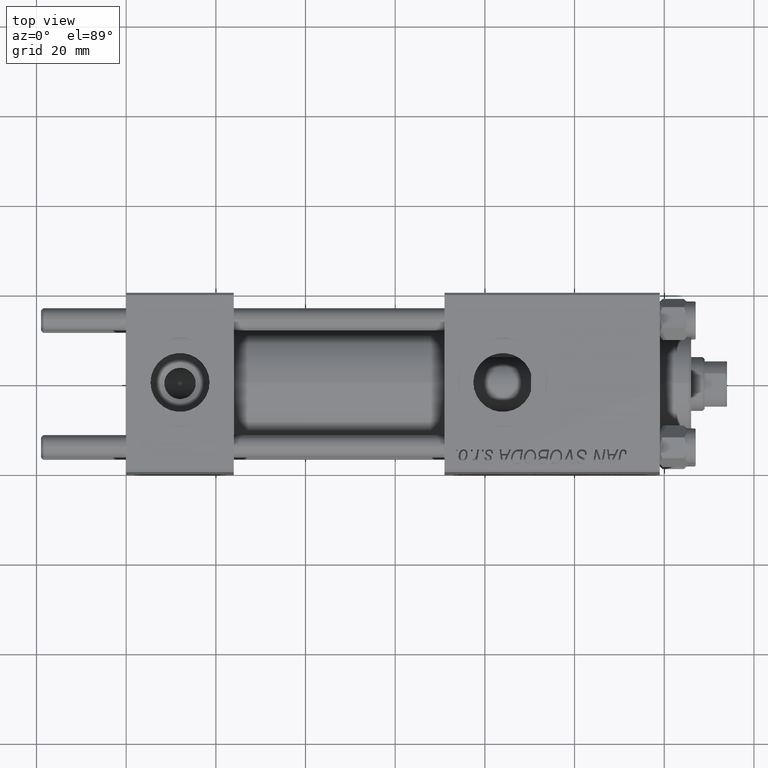
[diagram: clean part render]
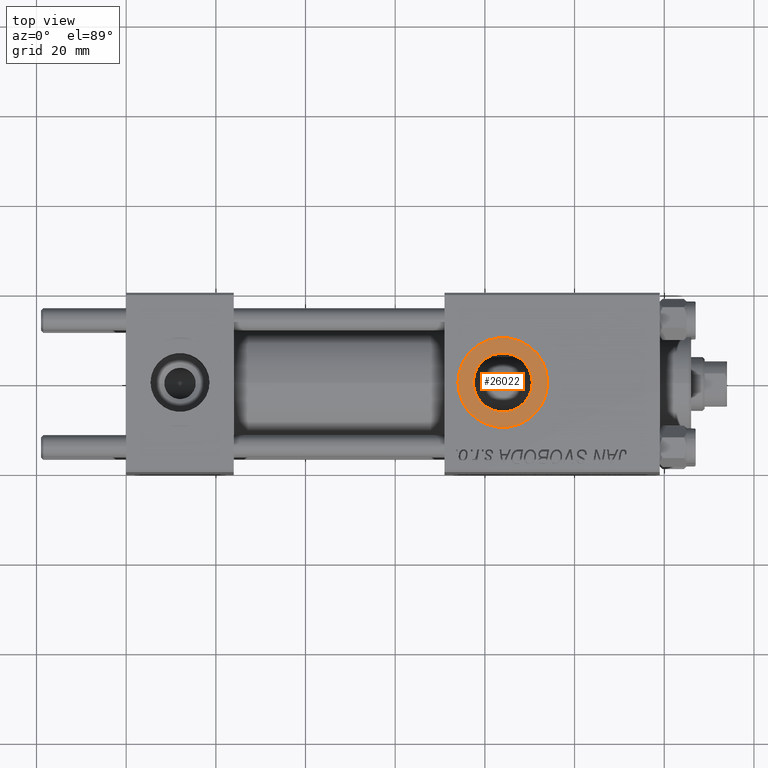
[diagram: same view with one face highlighted and labeled with its STEP entity id]
A machine part, top view. The second image highlights one B-rep face of the part: STEP entity #26022.
In plain terms, the highlighted planar face has unit normal (0, 0, 1).
Its self-contained STEP definition (entity closure, byte-faithful):
#297 = AXIS2_PLACEMENT_3D ( 'NONE', #40481, #17492, #44261 ) ;
#911 = CARTESIAN_POINT ( 'NONE',  ( 73.99999999999845102, -5.100766768292640183E-16, 19.80000000000000071 ) ) ;
#1065 = DIRECTION ( 'NONE',  ( 1.000000000000000000, 0.000000000000000000, 0.000000000000000000 ) ) ;
#1540 = CARTESIAN_POINT ( 'NONE',  ( 77.41999999999846693, -1.734723475976806897E-15, 19.80000000000000071 ) ) ;
#2691 = AXIS2_PLACEMENT_3D ( 'NONE', #24821, #8411, #8652 ) ;
#3044 = EDGE_CURVE ( 'NONE', #49365, #45378, #24474, .T. ) ;
#3516 = DIRECTION ( 'NONE',  ( 1.000000000000000000, 0.000000000000000000, 0.000000000000000000 ) ) ;
#3629 = DIRECTION ( 'NONE',  ( -0.000000000000000000, -0.000000000000000000, -1.000000000000000000 ) ) ;
#3761 = DIRECTION ( 'NONE',  ( 0.000000000000000000, 0.000000000000000000, 1.000000000000000000 ) ) ;
#5613 = FACE_OUTER_BOUND ( 'NONE', #32936, .T. ) ;
#5789 = VERTEX_POINT ( 'NONE', #911 ) ;
#6516 = CIRCLE ( 'NONE', #34762, 10.00000000000154898 ) ;
#7573 = CIRCLE ( 'NONE', #27744, 6.580000000001542837 ) ;
#7665 = CARTESIAN_POINT ( 'NONE',  ( 84.00000000000000000, -1.734723475976806897E-15, 19.80000000000000071 ) ) ;
#8335 = ORIENTED_EDGE ( 'NONE', *, *, #41074, .T. ) ;
#8411 = DIRECTION ( 'NONE',  ( -0.000000000000000000, -0.000000000000000000, -1.000000000000000000 ) ) ;
#8652 = DIRECTION ( 'NONE',  ( 1.000000000000000000, 0.000000000000000000, 0.000000000000000000 ) ) ;
#10720 = DIRECTION ( 'NONE',  ( 1.000000000000000000, 0.000000000000000000, 0.000000000000000000 ) ) ;
#11315 = ORIENTED_EDGE ( 'NONE', *, *, #22700, .T. ) ;
#13325 = CARTESIAN_POINT ( 'NONE',  ( 94.00000000000154898, -1.734723475976806897E-15, 19.80000000000000071 ) ) ;
#15268 = VERTEX_POINT ( 'NONE', #13325 ) ;
#15664 = ORIENTED_EDGE ( 'NONE', *, *, #19656, .T. ) ;
#15969 = DIRECTION ( 'NONE',  ( 0.000000000000000000, 0.000000000000000000, 1.000000000000000000 ) ) ;
#17492 = DIRECTION ( 'NONE',  ( 0.000000000000000000, 0.000000000000000000, 1.000000000000000000 ) ) ;
#17923 = CIRCLE ( 'NONE', #23582, 10.00000000000154898 ) ;
#18417 = CARTESIAN_POINT ( 'NONE',  ( 84.00000000000000000, -1.734723475976806897E-15, 19.80000000000000071 ) ) ;
#19656 = EDGE_CURVE ( 'NONE', #5789, #15268, #17923, .T. ) ;
#21588 = EDGE_LOOP ( 'NONE', ( #11315, #26202 ) ) ;
#22700 = EDGE_CURVE ( 'NONE', #45378, #49365, #7573, .T. ) ;
#23582 = AXIS2_PLACEMENT_3D ( 'NONE', #18417, #3761, #3516 ) ;
#24474 = CIRCLE ( 'NONE', #2691, 6.580000000001542837 ) ;
#24821 = CARTESIAN_POINT ( 'NONE',  ( 84.00000000000000000, -1.734723475976806897E-15, 19.80000000000000071 ) ) ;
#25438 = CARTESIAN_POINT ( 'NONE',  ( 90.58000000000154728, -9.289058821376599092E-16, 19.80000000000000071 ) ) ;
#26022 = ADVANCED_FACE ( 'NONE', ( #28852, #5613 ), #36444, .T. ) ;
#26202 = ORIENTED_EDGE ( 'NONE', *, *, #3044, .T. ) ;
#27744 = AXIS2_PLACEMENT_3D ( 'NONE', #7665, #3629, #10720 ) ;
#28852 = FACE_BOUND ( 'NONE', #21588, .T. ) ;
#32936 = EDGE_LOOP ( 'NONE', ( #8335, #15664 ) ) ;
#34670 = CARTESIAN_POINT ( 'NONE',  ( 84.00000000000000000, -1.734723475976806897E-15, 19.80000000000000071 ) ) ;
#34762 = AXIS2_PLACEMENT_3D ( 'NONE', #34670, #15969, #1065 ) ;
#36444 = PLANE ( 'NONE',  #297 ) ;
#40481 = CARTESIAN_POINT ( 'NONE',  ( 84.00000000000000000, -1.734723475976806897E-15, 19.80000000000000071 ) ) ;
#41074 = EDGE_CURVE ( 'NONE', #15268, #5789, #6516, .T. ) ;
#44261 = DIRECTION ( 'NONE',  ( 1.000000000000000000, 0.000000000000000000, -0.000000000000000000 ) ) ;
#45378 = VERTEX_POINT ( 'NONE', #1540 ) ;
#49365 = VERTEX_POINT ( 'NONE', #25438 ) ;